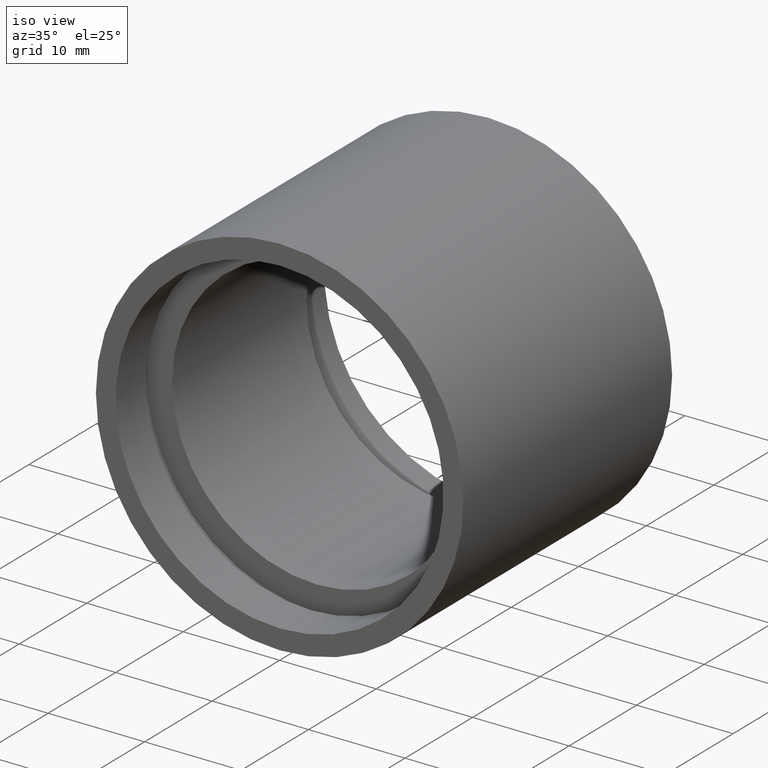
[diagram: clean part render]
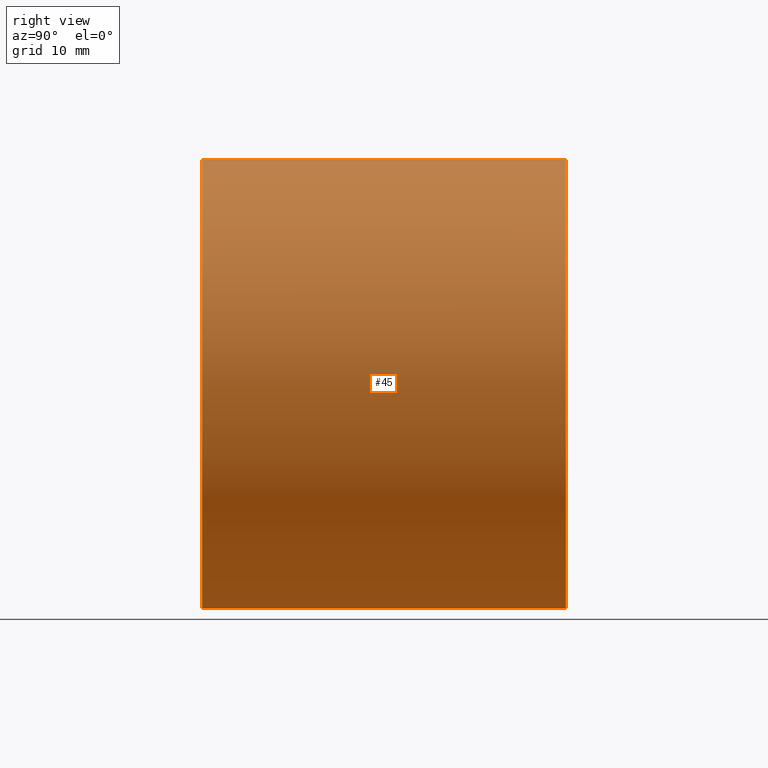
[diagram: tour spotlight — one face highlighted and labeled with its STEP entity id]
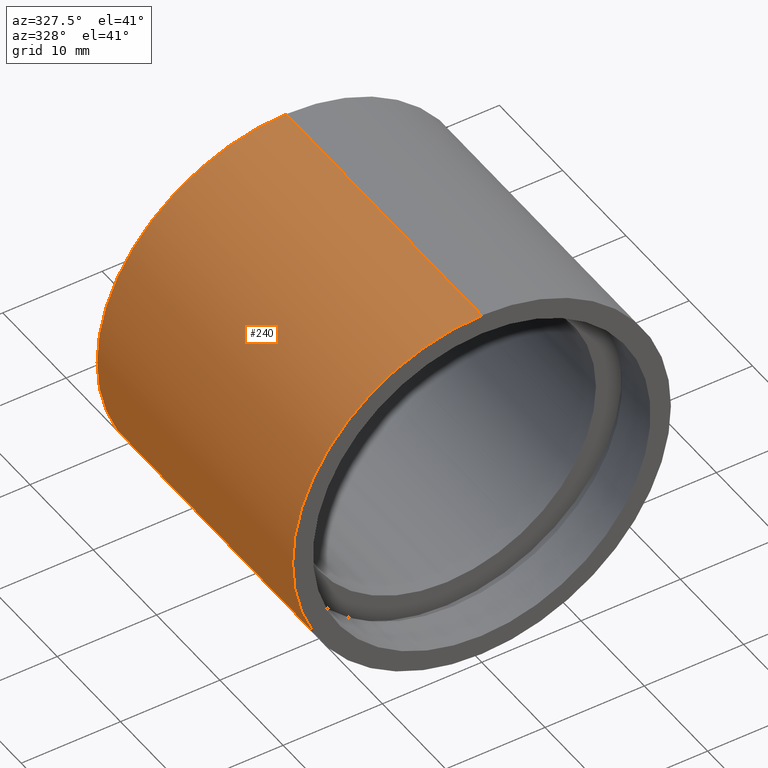
[diagram: tour spotlight — one face highlighted and labeled with its STEP entity id]
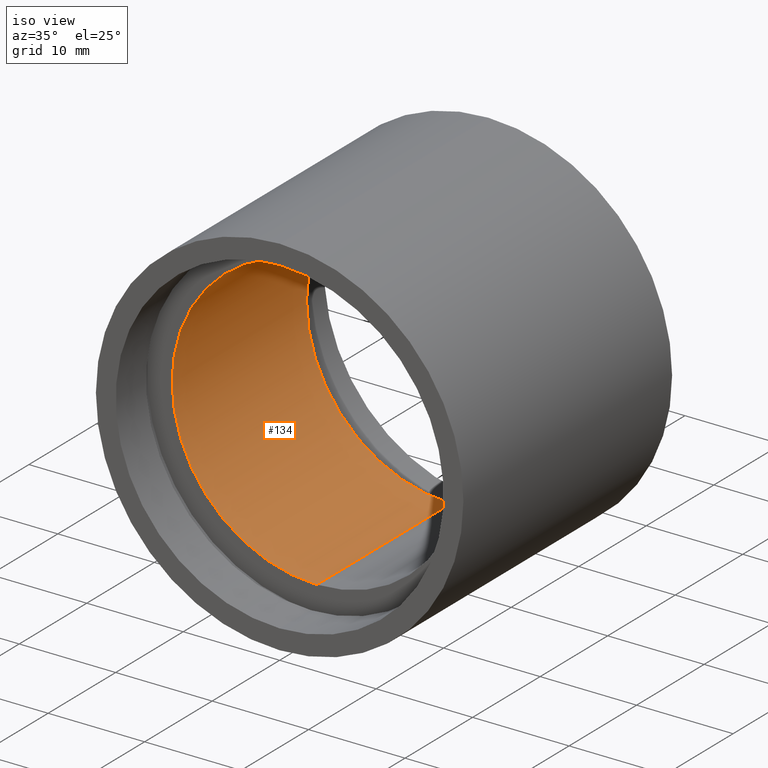
[diagram: tour spotlight — one face highlighted and labeled with its STEP entity id]
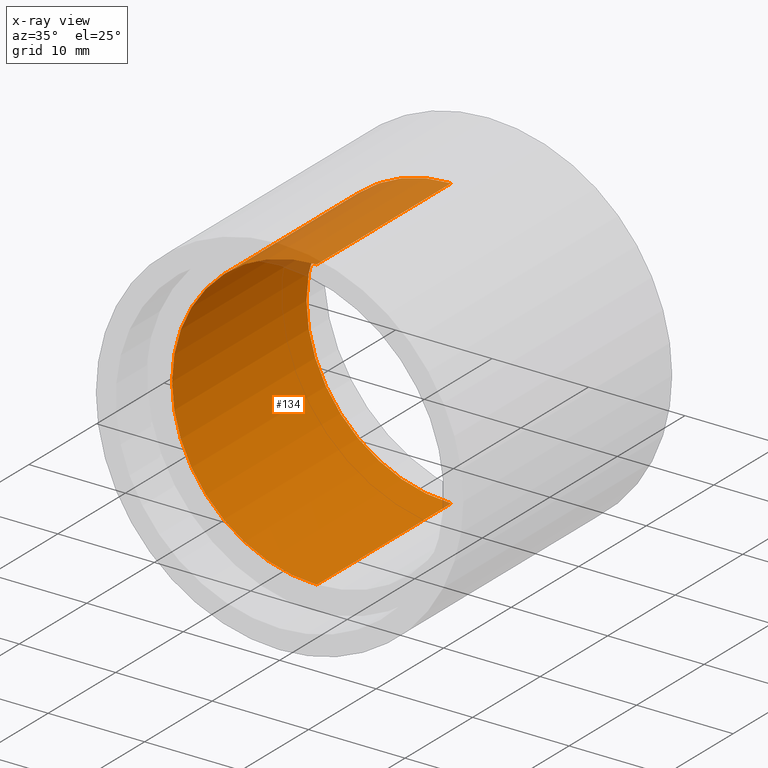
[diagram: x-ray of the same camera — body ghosted, this tour face saturated]
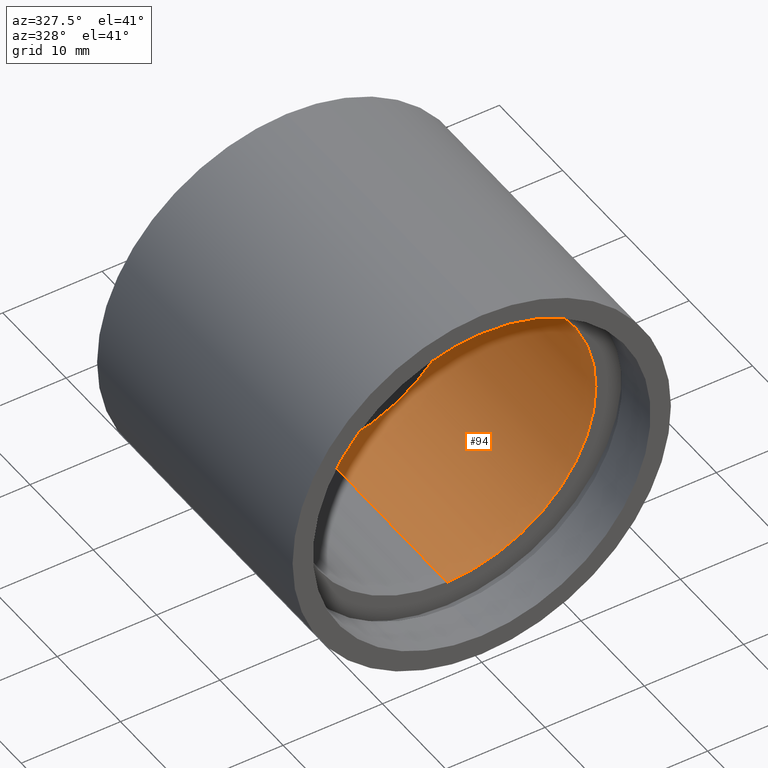
[diagram: tour spotlight — one face highlighted and labeled with its STEP entity id]
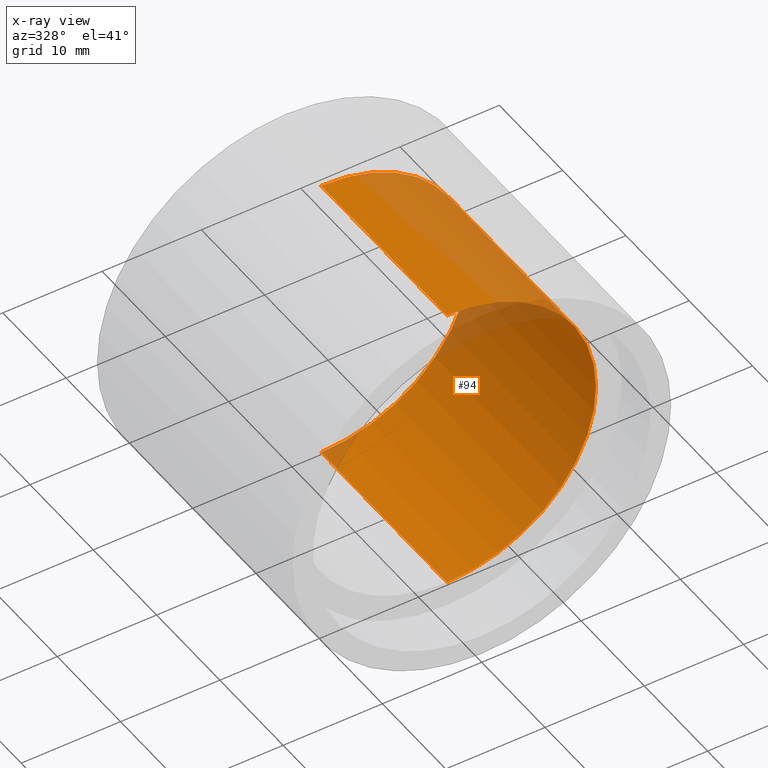
[diagram: x-ray of the same camera — body ghosted, this tour face saturated]
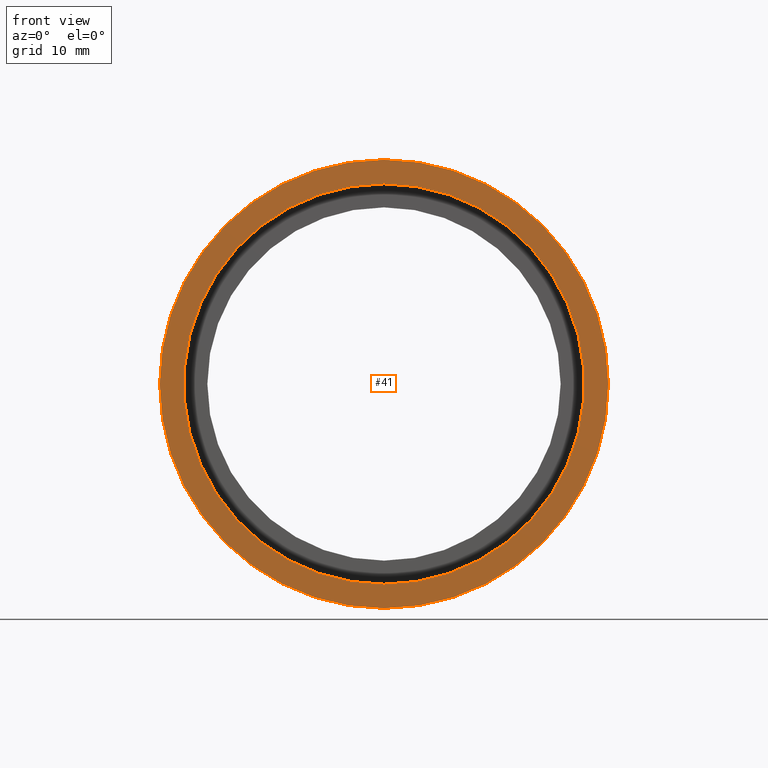
[diagram: tour spotlight — one face highlighted and labeled with its STEP entity id]
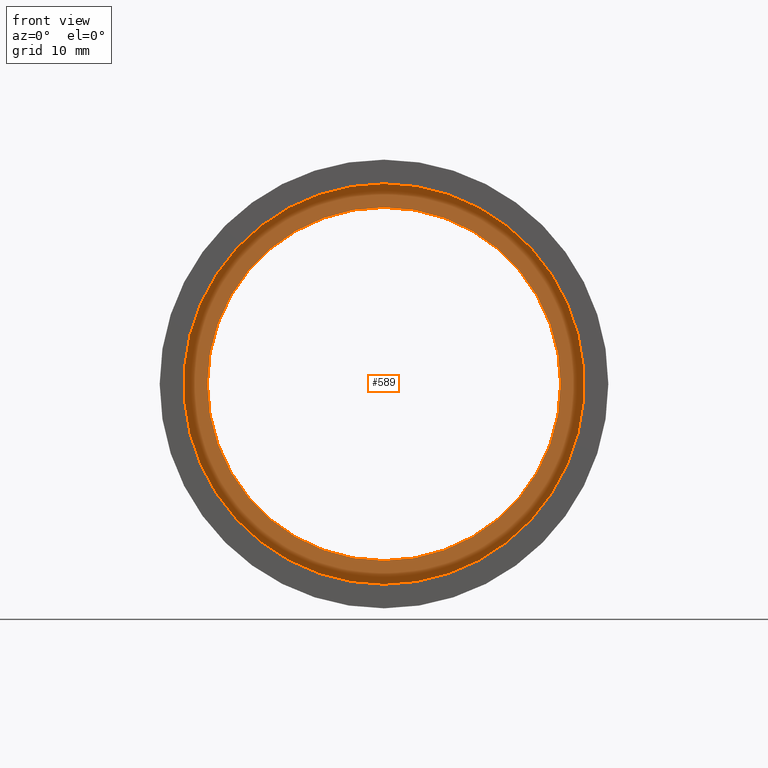
[diagram: tour spotlight — one face highlighted and labeled with its STEP entity id]
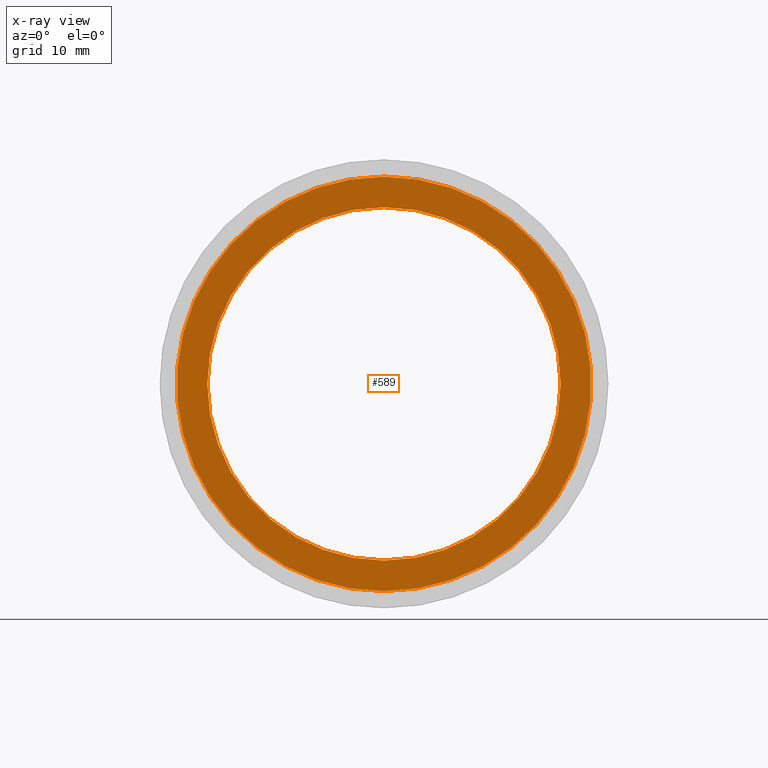
[diagram: x-ray of the same camera — body ghosted, this tour face saturated]
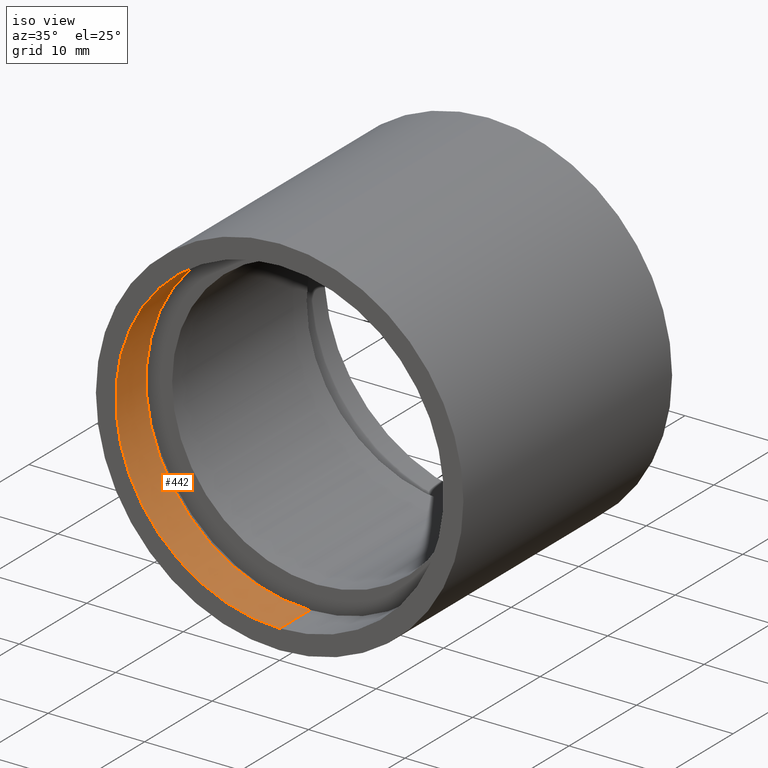
[diagram: tour spotlight — one face highlighted and labeled with its STEP entity id]
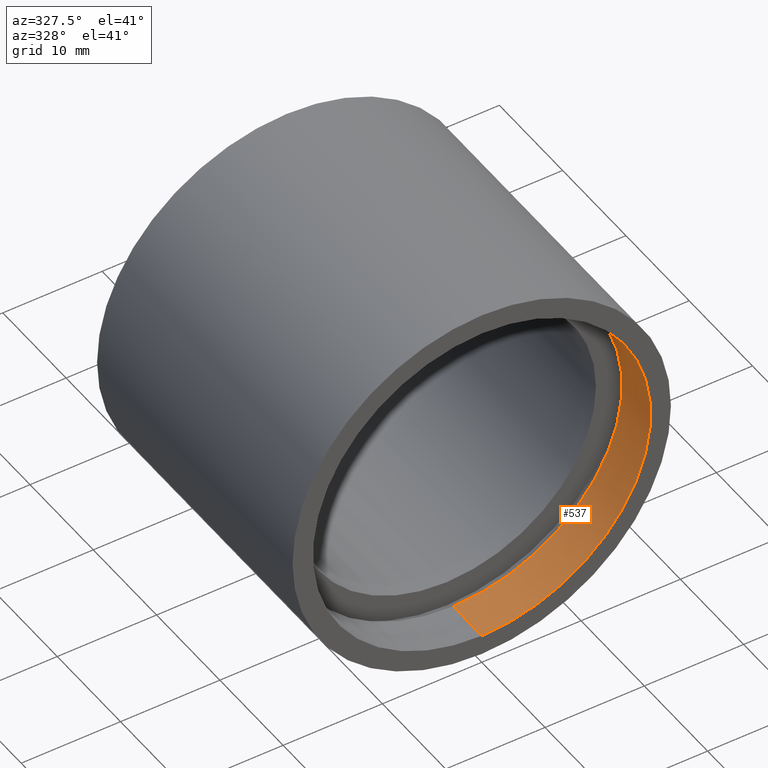
[diagram: tour spotlight — one face highlighted and labeled with its STEP entity id]
A machine part: a face-by-face anatomy tour. The part has 18 B-rep faces; the first image is the clean iso view, then the 8 largest visible faces are spotlighted one at a time (largest first), each with its STEP entity span.

Face 1 — right view, entity #45. In plain terms, the highlighted cylindrical surface (partial cylindrical patch) has radius 19.05 mm, axis along (-0, 1, -0).
Definition (entity closure, byte-faithful):
#8 = VERTEX_POINT ( 'NONE', #590 ) ;
#10 = ORIENTED_EDGE ( 'NONE', *, *, #419, .T. ) ;
#45 = ADVANCED_FACE ( 'NONE', ( #454 ), #397, .T. ) ;
#61 = AXIS2_PLACEMENT_3D ( 'NONE', #409, #410, #415 ) ;
#65 = DIRECTION ( 'NONE',  ( -0.0000000000000000000, 1.000000000000000000, -0.0000000000000000000 ) ) ;
#83 = VERTEX_POINT ( 'NONE', #147 ) ;
#105 = CARTESIAN_POINT ( 'NONE',  ( 0.0000000000000000000, 161.3761669434274500, 19.05000000000002200 ) ) ;
#110 = DIRECTION ( 'NONE',  ( 0.0000000000000000000, 0.0000000000000000000, 1.000000000000000000 ) ) ;
#124 = CARTESIAN_POINT ( 'NONE',  ( 2.332952152375710400E-015, 161.3761669434274500, -19.05000000000002200 ) ) ;
#142 = EDGE_CURVE ( 'NONE', #618, #83, #572, .T. ) ;
#147 = CARTESIAN_POINT ( 'NONE',  ( 0.0000000000000000000, 30.89999999999998400, 19.05000000000002200 ) ) ;
#154 = VECTOR ( 'NONE', #320, 1000.000000000000000 ) ;
#162 = DIRECTION ( 'NONE',  ( 0.0000000000000000000, 0.0000000000000000000, 1.000000000000000000 ) ) ;
#172 = VERTEX_POINT ( 'NONE', #220 ) ;
#202 = EDGE_LOOP ( 'NONE', ( #609, #10, #391, #546 ) ) ;
#218 = CARTESIAN_POINT ( 'NONE',  ( 0.0000000000000000000, -2.775557561562891400E-014, 0.0000000000000000000 ) ) ;
#220 = CARTESIAN_POINT ( 'NONE',  ( 2.332952152375710400E-015, -2.775557561562891400E-014, -19.05000000000002200 ) ) ;
#247 = AXIS2_PLACEMENT_3D ( 'NONE', #327, #65, #110 ) ;
#257 = AXIS2_PLACEMENT_3D ( 'NONE', #218, #319, #162 ) ;
#319 = DIRECTION ( 'NONE',  ( -0.0000000000000000000, 1.000000000000000000, -0.0000000000000000000 ) ) ;
#320 = DIRECTION ( 'NONE',  ( -0.0000000000000000000, 1.000000000000000000, -0.0000000000000000000 ) ) ;
#327 = CARTESIAN_POINT ( 'NONE',  ( 0.0000000000000000000, 30.89999999999998400, 0.0000000000000000000 ) ) ;
#391 = ORIENTED_EDGE ( 'NONE', *, *, #427, .F. ) ;
#397 = CYLINDRICAL_SURFACE ( 'NONE', #61, 19.05000000000002200 ) ;
#403 = LINE ( 'NONE', #124, #498 ) ;
#409 = CARTESIAN_POINT ( 'NONE',  ( 0.0000000000000000000, 161.3761669434274500, 0.0000000000000000000 ) ) ;
#410 = DIRECTION ( 'NONE',  ( -0.0000000000000000000, 1.000000000000000000, -0.0000000000000000000 ) ) ;
#415 = DIRECTION ( 'NONE',  ( 0.0000000000000000000, 0.0000000000000000000, 1.000000000000000000 ) ) ;
#419 = EDGE_CURVE ( 'NONE', #172, #8, #403, .T. ) ;
#427 = EDGE_CURVE ( 'NONE', #83, #8, #481, .T. ) ;
#454 = FACE_OUTER_BOUND ( 'NONE', #202, .T. ) ;
#477 = EDGE_CURVE ( 'NONE', #618, #172, #592, .T. ) ;
#481 = CIRCLE ( 'NONE', #247, 19.05000000000002200 ) ;
#485 = CARTESIAN_POINT ( 'NONE',  ( 0.0000000000000000000, -2.775557561562891400E-014, 19.05000000000002200 ) ) ;
#498 = VECTOR ( 'NONE', #532, 1000.000000000000000 ) ;
#532 = DIRECTION ( 'NONE',  ( -0.0000000000000000000, 1.000000000000000000, -0.0000000000000000000 ) ) ;
#546 = ORIENTED_EDGE ( 'NONE', *, *, #142, .F. ) ;
#572 = LINE ( 'NONE', #105, #154 ) ;
#590 = CARTESIAN_POINT ( 'NONE',  ( 2.332952152375710400E-015, 30.89999999999998400, -19.05000000000002200 ) ) ;
#592 = CIRCLE ( 'NONE', #257, 19.05000000000002200 ) ;
#609 = ORIENTED_EDGE ( 'NONE', *, *, #477, .T. ) ;
#618 = VERTEX_POINT ( 'NONE', #485 ) ;

Face 2 — auxiliary view, entity #240. In plain terms, the highlighted cylindrical surface (partial cylindrical patch) has radius 19.05 mm, axis along (-0, 1, -0).
Definition (entity closure, byte-faithful):
#8 = VERTEX_POINT ( 'NONE', #590 ) ;
#20 = DIRECTION ( 'NONE',  ( -0.0000000000000000000, 1.000000000000000000, -0.0000000000000000000 ) ) ;
#83 = VERTEX_POINT ( 'NONE', #147 ) ;
#87 = DIRECTION ( 'NONE',  ( 0.0000000000000000000, 0.0000000000000000000, 1.000000000000000000 ) ) ;
#105 = CARTESIAN_POINT ( 'NONE',  ( 0.0000000000000000000, 161.3761669434274500, 19.05000000000002200 ) ) ;
#124 = CARTESIAN_POINT ( 'NONE',  ( 2.332952152375710400E-015, 161.3761669434274500, -19.05000000000002200 ) ) ;
#128 = AXIS2_PLACEMENT_3D ( 'NONE', #375, #20, #605 ) ;
#142 = EDGE_CURVE ( 'NONE', #618, #83, #572, .T. ) ;
#147 = CARTESIAN_POINT ( 'NONE',  ( 0.0000000000000000000, 30.89999999999998400, 19.05000000000002200 ) ) ;
#154 = VECTOR ( 'NONE', #320, 1000.000000000000000 ) ;
#169 = AXIS2_PLACEMENT_3D ( 'NONE', #613, #267, #280 ) ;
#172 = VERTEX_POINT ( 'NONE', #220 ) ;
#191 = CARTESIAN_POINT ( 'NONE',  ( 0.0000000000000000000, -2.775557561562891400E-014, 0.0000000000000000000 ) ) ;
#220 = CARTESIAN_POINT ( 'NONE',  ( 2.332952152375710400E-015, -2.775557561562891400E-014, -19.05000000000002200 ) ) ;
#240 = ADVANCED_FACE ( 'NONE', ( #471 ), #358, .T. ) ;
#243 = DIRECTION ( 'NONE',  ( -0.0000000000000000000, 1.000000000000000000, -0.0000000000000000000 ) ) ;
#251 = EDGE_LOOP ( 'NONE', ( #539, #292, #602, #594 ) ) ;
#267 = DIRECTION ( 'NONE',  ( -0.0000000000000000000, 1.000000000000000000, -0.0000000000000000000 ) ) ;
#280 = DIRECTION ( 'NONE',  ( 0.0000000000000000000, 0.0000000000000000000, 1.000000000000000000 ) ) ;
#292 = ORIENTED_EDGE ( 'NONE', *, *, #599, .T. ) ;
#320 = DIRECTION ( 'NONE',  ( -0.0000000000000000000, 1.000000000000000000, -0.0000000000000000000 ) ) ;
#334 = CIRCLE ( 'NONE', #128, 19.05000000000002200 ) ;
#358 = CYLINDRICAL_SURFACE ( 'NONE', #169, 19.05000000000002200 ) ;
#375 = CARTESIAN_POINT ( 'NONE',  ( 0.0000000000000000000, 30.89999999999998400, 0.0000000000000000000 ) ) ;
#403 = LINE ( 'NONE', #124, #498 ) ;
#419 = EDGE_CURVE ( 'NONE', #172, #8, #403, .T. ) ;
#431 = AXIS2_PLACEMENT_3D ( 'NONE', #191, #243, #87 ) ;
#448 = EDGE_CURVE ( 'NONE', #8, #83, #334, .T. ) ;
#471 = FACE_OUTER_BOUND ( 'NONE', #251, .T. ) ;
#485 = CARTESIAN_POINT ( 'NONE',  ( 0.0000000000000000000, -2.775557561562891400E-014, 19.05000000000002200 ) ) ;
#498 = VECTOR ( 'NONE', #532, 1000.000000000000000 ) ;
#532 = DIRECTION ( 'NONE',  ( -0.0000000000000000000, 1.000000000000000000, -0.0000000000000000000 ) ) ;
#539 = ORIENTED_EDGE ( 'NONE', *, *, #419, .F. ) ;
#572 = LINE ( 'NONE', #105, #154 ) ;
#587 = CIRCLE ( 'NONE', #431, 19.05000000000002200 ) ;
#590 = CARTESIAN_POINT ( 'NONE',  ( 2.332952152375710400E-015, 30.89999999999998400, -19.05000000000002200 ) ) ;
#594 = ORIENTED_EDGE ( 'NONE', *, *, #448, .F. ) ;
#599 = EDGE_CURVE ( 'NONE', #172, #618, #587, .T. ) ;
#602 = ORIENTED_EDGE ( 'NONE', *, *, #142, .T. ) ;
#605 = DIRECTION ( 'NONE',  ( 0.0000000000000000000, 0.0000000000000000000, 1.000000000000000000 ) ) ;
#613 = CARTESIAN_POINT ( 'NONE',  ( 0.0000000000000000000, 161.3761669434274500, 0.0000000000000000000 ) ) ;
#618 = VERTEX_POINT ( 'NONE', #485 ) ;

Face 3 — iso view, entity #134. An x-ray twin of the same camera follows (body ghosted, this face saturated) — the face is partly hidden behind the body. In plain terms, the highlighted cylindrical surface (partial cylindrical patch) has radius 15 mm, axis along (-0, 1, -0).
Definition (entity closure, byte-faithful):
#6 = CIRCLE ( 'NONE', #462, 15.00000000000001800 ) ;
#12 = CARTESIAN_POINT ( 'NONE',  ( 0.0000000000000000000, 161.3761669434274500, 0.0000000000000000000 ) ) ;
#13 = VERTEX_POINT ( 'NONE', #588 ) ;
#16 = ORIENTED_EDGE ( 'NONE', *, *, #591, .T. ) ;
#35 = CARTESIAN_POINT ( 'NONE',  ( 0.0000000000000000000, 5.499999999999976900, 15.00000000000001800 ) ) ;
#42 = LINE ( 'NONE', #199, #252 ) ;
#53 = AXIS2_PLACEMENT_3D ( 'NONE', #12, #463, #328 ) ;
#92 = EDGE_CURVE ( 'NONE', #624, #100, #42, .T. ) ;
#100 = VERTEX_POINT ( 'NONE', #466 ) ;
#103 = CARTESIAN_POINT ( 'NONE',  ( 0.0000000000000000000, 5.499999999999976900, 0.0000000000000000000 ) ) ;
#111 = EDGE_CURVE ( 'NONE', #13, #624, #140, .T. ) ;
#131 = VECTOR ( 'NONE', #286, 1000.000000000000000 ) ;
#134 = ADVANCED_FACE ( 'NONE', ( #585 ), #167, .F. ) ;
#140 = CIRCLE ( 'NONE', #455, 15.00000000000001800 ) ;
#167 = CYLINDRICAL_SURFACE ( 'NONE', #53, 15.00000000000001800 ) ;
#187 = CARTESIAN_POINT ( 'NONE',  ( 0.0000000000000000000, 25.39999999999997700, 0.0000000000000000000 ) ) ;
#188 = DIRECTION ( 'NONE',  ( -0.0000000000000000000, 1.000000000000000000, -0.0000000000000000000 ) ) ;
#199 = CARTESIAN_POINT ( 'NONE',  ( 0.0000000000000000000, 161.3761669434274500, 15.00000000000001800 ) ) ;
#201 = DIRECTION ( 'NONE',  ( 0.0000000000000000000, 0.0000000000000000000, 1.000000000000000000 ) ) ;
#205 = DIRECTION ( 'NONE',  ( -0.0000000000000000000, 1.000000000000000000, -0.0000000000000000000 ) ) ;
#227 = CARTESIAN_POINT ( 'NONE',  ( 1.836970198721032000E-015, 161.3761669434274500, -15.00000000000001800 ) ) ;
#234 = DIRECTION ( 'NONE',  ( 0.0000000000000000000, 0.0000000000000000000, 1.000000000000000000 ) ) ;
#235 = LINE ( 'NONE', #227, #131 ) ;
#252 = VECTOR ( 'NONE', #205, 1000.000000000000000 ) ;
#286 = DIRECTION ( 'NONE',  ( -0.0000000000000000000, 1.000000000000000000, -0.0000000000000000000 ) ) ;
#311 = ORIENTED_EDGE ( 'NONE', *, *, #111, .F. ) ;
#328 = DIRECTION ( 'NONE',  ( 0.0000000000000000000, 0.0000000000000000000, 1.000000000000000000 ) ) ;
#362 = ORIENTED_EDGE ( 'NONE', *, *, #604, .T. ) ;
#381 = VERTEX_POINT ( 'NONE', #528 ) ;
#455 = AXIS2_PLACEMENT_3D ( 'NONE', #103, #505, #201 ) ;
#462 = AXIS2_PLACEMENT_3D ( 'NONE', #187, #188, #234 ) ;
#463 = DIRECTION ( 'NONE',  ( -0.0000000000000000000, 1.000000000000000000, -0.0000000000000000000 ) ) ;
#466 = CARTESIAN_POINT ( 'NONE',  ( 0.0000000000000000000, 25.39999999999997700, 15.00000000000001800 ) ) ;
#479 = ORIENTED_EDGE ( 'NONE', *, *, #92, .F. ) ;
#505 = DIRECTION ( 'NONE',  ( -0.0000000000000000000, 1.000000000000000000, -0.0000000000000000000 ) ) ;
#528 = CARTESIAN_POINT ( 'NONE',  ( 1.836970198721032000E-015, 25.39999999999997700, -15.00000000000001800 ) ) ;
#531 = EDGE_LOOP ( 'NONE', ( #311, #16, #362, #479 ) ) ;
#585 = FACE_OUTER_BOUND ( 'NONE', #531, .T. ) ;
#588 = CARTESIAN_POINT ( 'NONE',  ( 1.836970198721032000E-015, 5.499999999999976900, -15.00000000000001800 ) ) ;
#591 = EDGE_CURVE ( 'NONE', #13, #381, #235, .T. ) ;
#604 = EDGE_CURVE ( 'NONE', #381, #100, #6, .T. ) ;
#624 = VERTEX_POINT ( 'NONE', #35 ) ;

Face 4 — auxiliary view, entity #94. An x-ray twin of the same camera follows (body ghosted, this face saturated) — the face is partly hidden behind the body. In plain terms, the highlighted cylindrical surface (partial cylindrical patch) has radius 15 mm, axis along (-0, 1, -0).
Definition (entity closure, byte-faithful):
#7 = AXIS2_PLACEMENT_3D ( 'NONE', #107, #63, #256 ) ;
#13 = VERTEX_POINT ( 'NONE', #588 ) ;
#21 = DIRECTION ( 'NONE',  ( 0.0000000000000000000, 0.0000000000000000000, 1.000000000000000000 ) ) ;
#23 = CARTESIAN_POINT ( 'NONE',  ( 0.0000000000000000000, 5.499999999999976900, 0.0000000000000000000 ) ) ;
#29 = EDGE_CURVE ( 'NONE', #100, #381, #222, .T. ) ;
#35 = CARTESIAN_POINT ( 'NONE',  ( 0.0000000000000000000, 5.499999999999976900, 15.00000000000001800 ) ) ;
#42 = LINE ( 'NONE', #199, #252 ) ;
#56 = DIRECTION ( 'NONE',  ( -0.0000000000000000000, 1.000000000000000000, -0.0000000000000000000 ) ) ;
#63 = DIRECTION ( 'NONE',  ( -0.0000000000000000000, 1.000000000000000000, -0.0000000000000000000 ) ) ;
#92 = EDGE_CURVE ( 'NONE', #624, #100, #42, .T. ) ;
#94 = ADVANCED_FACE ( 'NONE', ( #502 ), #460, .F. ) ;
#100 = VERTEX_POINT ( 'NONE', #466 ) ;
#107 = CARTESIAN_POINT ( 'NONE',  ( 0.0000000000000000000, 25.39999999999997700, 0.0000000000000000000 ) ) ;
#126 = ORIENTED_EDGE ( 'NONE', *, *, #92, .T. ) ;
#131 = VECTOR ( 'NONE', #286, 1000.000000000000000 ) ;
#132 = ORIENTED_EDGE ( 'NONE', *, *, #29, .T. ) ;
#133 = AXIS2_PLACEMENT_3D ( 'NONE', #306, #56, #551 ) ;
#199 = CARTESIAN_POINT ( 'NONE',  ( 0.0000000000000000000, 161.3761669434274500, 15.00000000000001800 ) ) ;
#205 = DIRECTION ( 'NONE',  ( -0.0000000000000000000, 1.000000000000000000, -0.0000000000000000000 ) ) ;
#222 = CIRCLE ( 'NONE', #7, 15.00000000000001800 ) ;
#227 = CARTESIAN_POINT ( 'NONE',  ( 1.836970198721032000E-015, 161.3761669434274500, -15.00000000000001800 ) ) ;
#235 = LINE ( 'NONE', #227, #131 ) ;
#250 = EDGE_CURVE ( 'NONE', #624, #13, #374, .T. ) ;
#252 = VECTOR ( 'NONE', #205, 1000.000000000000000 ) ;
#256 = DIRECTION ( 'NONE',  ( 0.0000000000000000000, 0.0000000000000000000, 1.000000000000000000 ) ) ;
#286 = DIRECTION ( 'NONE',  ( -0.0000000000000000000, 1.000000000000000000, -0.0000000000000000000 ) ) ;
#300 = ORIENTED_EDGE ( 'NONE', *, *, #250, .F. ) ;
#306 = CARTESIAN_POINT ( 'NONE',  ( 0.0000000000000000000, 161.3761669434274500, 0.0000000000000000000 ) ) ;
#307 = AXIS2_PLACEMENT_3D ( 'NONE', #23, #606, #21 ) ;
#374 = CIRCLE ( 'NONE', #307, 15.00000000000001800 ) ;
#381 = VERTEX_POINT ( 'NONE', #528 ) ;
#413 = ORIENTED_EDGE ( 'NONE', *, *, #591, .F. ) ;
#460 = CYLINDRICAL_SURFACE ( 'NONE', #133, 15.00000000000001800 ) ;
#466 = CARTESIAN_POINT ( 'NONE',  ( 0.0000000000000000000, 25.39999999999997700, 15.00000000000001800 ) ) ;
#502 = FACE_OUTER_BOUND ( 'NONE', #570, .T. ) ;
#528 = CARTESIAN_POINT ( 'NONE',  ( 1.836970198721032000E-015, 25.39999999999997700, -15.00000000000001800 ) ) ;
#551 = DIRECTION ( 'NONE',  ( 0.0000000000000000000, 0.0000000000000000000, 1.000000000000000000 ) ) ;
#570 = EDGE_LOOP ( 'NONE', ( #413, #300, #126, #132 ) ) ;
#588 = CARTESIAN_POINT ( 'NONE',  ( 1.836970198721032000E-015, 5.499999999999976900, -15.00000000000001800 ) ) ;
#591 = EDGE_CURVE ( 'NONE', #13, #381, #235, .T. ) ;
#606 = DIRECTION ( 'NONE',  ( -0.0000000000000000000, 1.000000000000000000, -0.0000000000000000000 ) ) ;
#624 = VERTEX_POINT ( 'NONE', #35 ) ;

Face 5 — front view, entity #41. In plain terms, the highlighted planar face has unit normal (-0, 1, 0).
Definition (entity closure, byte-faithful):
#41 = ADVANCED_FACE ( 'NONE', ( #165, #305 ), #197, .F. ) ;
#72 = ORIENTED_EDGE ( 'NONE', *, *, #477, .F. ) ;
#87 = DIRECTION ( 'NONE',  ( 0.0000000000000000000, 0.0000000000000000000, 1.000000000000000000 ) ) ;
#98 = AXIS2_PLACEMENT_3D ( 'NONE', #370, #552, #310 ) ;
#113 = DIRECTION ( 'NONE',  ( -0.0000000000000000000, 1.000000000000000000, -0.0000000000000000000 ) ) ;
#162 = DIRECTION ( 'NONE',  ( 0.0000000000000000000, 0.0000000000000000000, 1.000000000000000000 ) ) ;
#165 = FACE_OUTER_BOUND ( 'NONE', #384, .T. ) ;
#172 = VERTEX_POINT ( 'NONE', #220 ) ;
#190 = ORIENTED_EDGE ( 'NONE', *, *, #244, .T. ) ;
#191 = CARTESIAN_POINT ( 'NONE',  ( 0.0000000000000000000, -2.775557561562891400E-014, 0.0000000000000000000 ) ) ;
#197 = PLANE ( 'NONE',  #98 ) ;
#210 = CIRCLE ( 'NONE', #392, 17.00000000000002100 ) ;
#212 = CIRCLE ( 'NONE', #549, 17.00000000000002100 ) ;
#218 = CARTESIAN_POINT ( 'NONE',  ( 0.0000000000000000000, -2.775557561562891400E-014, 0.0000000000000000000 ) ) ;
#220 = CARTESIAN_POINT ( 'NONE',  ( 2.332952152375710400E-015, -2.775557561562891400E-014, -19.05000000000002200 ) ) ;
#243 = DIRECTION ( 'NONE',  ( -0.0000000000000000000, 1.000000000000000000, -0.0000000000000000000 ) ) ;
#244 = EDGE_CURVE ( 'NONE', #501, #351, #212, .T. ) ;
#257 = AXIS2_PLACEMENT_3D ( 'NONE', #218, #319, #162 ) ;
#258 = DIRECTION ( 'NONE',  ( -0.0000000000000000000, 1.000000000000000000, -0.0000000000000000000 ) ) ;
#278 = CARTESIAN_POINT ( 'NONE',  ( 0.0000000000000000000, -2.775557561562891400E-014, 0.0000000000000000000 ) ) ;
#305 = FACE_BOUND ( 'NONE', #407, .T. ) ;
#310 = DIRECTION ( 'NONE',  ( 0.0000000000000000000, 0.0000000000000000000, 1.000000000000000000 ) ) ;
#319 = DIRECTION ( 'NONE',  ( -0.0000000000000000000, 1.000000000000000000, -0.0000000000000000000 ) ) ;
#343 = CARTESIAN_POINT ( 'NONE',  ( 2.081899558550503000E-015, -2.775557561562891400E-014, -17.00000000000002100 ) ) ;
#351 = VERTEX_POINT ( 'NONE', #343 ) ;
#363 = ORIENTED_EDGE ( 'NONE', *, *, #467, .T. ) ;
#370 = CARTESIAN_POINT ( 'NONE',  ( 17.00000000000002100, -1.527582111260147300E-014, 0.0000000000000000000 ) ) ;
#384 = EDGE_LOOP ( 'NONE', ( #72, #404 ) ) ;
#392 = AXIS2_PLACEMENT_3D ( 'NONE', #425, #258, #566 ) ;
#404 = ORIENTED_EDGE ( 'NONE', *, *, #599, .F. ) ;
#407 = EDGE_LOOP ( 'NONE', ( #190, #363 ) ) ;
#414 = CARTESIAN_POINT ( 'NONE',  ( 0.0000000000000000000, -2.775557561562891400E-014, 17.00000000000002100 ) ) ;
#425 = CARTESIAN_POINT ( 'NONE',  ( 0.0000000000000000000, -2.775557561562891400E-014, 0.0000000000000000000 ) ) ;
#431 = AXIS2_PLACEMENT_3D ( 'NONE', #191, #243, #87 ) ;
#467 = EDGE_CURVE ( 'NONE', #351, #501, #210, .T. ) ;
#477 = EDGE_CURVE ( 'NONE', #618, #172, #592, .T. ) ;
#485 = CARTESIAN_POINT ( 'NONE',  ( 0.0000000000000000000, -2.775557561562891400E-014, 19.05000000000002200 ) ) ;
#501 = VERTEX_POINT ( 'NONE', #414 ) ;
#514 = DIRECTION ( 'NONE',  ( 0.0000000000000000000, 0.0000000000000000000, 1.000000000000000000 ) ) ;
#549 = AXIS2_PLACEMENT_3D ( 'NONE', #278, #113, #514 ) ;
#552 = DIRECTION ( 'NONE',  ( -0.0000000000000000000, 1.000000000000000000, 0.0000000000000000000 ) ) ;
#566 = DIRECTION ( 'NONE',  ( 0.0000000000000000000, 0.0000000000000000000, 1.000000000000000000 ) ) ;
#587 = CIRCLE ( 'NONE', #431, 19.05000000000002200 ) ;
#592 = CIRCLE ( 'NONE', #257, 19.05000000000002200 ) ;
#599 = EDGE_CURVE ( 'NONE', #172, #618, #587, .T. ) ;
#618 = VERTEX_POINT ( 'NONE', #485 ) ;

Face 6 — front view, entity #589. An x-ray twin of the same camera follows (body ghosted, this face saturated) — the face is partly hidden behind the body. In plain terms, the highlighted planar face has unit normal (-0, 1, 0).
Definition (entity closure, byte-faithful):
#13 = VERTEX_POINT ( 'NONE', #588 ) ;
#21 = DIRECTION ( 'NONE',  ( 0.0000000000000000000, 0.0000000000000000000, 1.000000000000000000 ) ) ;
#23 = CARTESIAN_POINT ( 'NONE',  ( 0.0000000000000000000, 5.499999999999976900, 0.0000000000000000000 ) ) ;
#35 = CARTESIAN_POINT ( 'NONE',  ( 0.0000000000000000000, 5.499999999999976900, 15.00000000000001800 ) ) ;
#51 = FACE_OUTER_BOUND ( 'NONE', #440, .T. ) ;
#69 = DIRECTION ( 'NONE',  ( -0.0000000000000000000, 1.000000000000000000, -0.0000000000000000000 ) ) ;
#85 = CIRCLE ( 'NONE', #349, 17.60000000000002300 ) ;
#103 = CARTESIAN_POINT ( 'NONE',  ( 0.0000000000000000000, 5.499999999999976900, 0.0000000000000000000 ) ) ;
#111 = EDGE_CURVE ( 'NONE', #13, #624, #140, .T. ) ;
#140 = CIRCLE ( 'NONE', #455, 15.00000000000001800 ) ;
#161 = FACE_BOUND ( 'NONE', #496, .T. ) ;
#176 = CIRCLE ( 'NONE', #395, 17.60000000000002300 ) ;
#193 = AXIS2_PLACEMENT_3D ( 'NONE', #224, #279, #386 ) ;
#201 = DIRECTION ( 'NONE',  ( 0.0000000000000000000, 0.0000000000000000000, 1.000000000000000000 ) ) ;
#214 = EDGE_CURVE ( 'NONE', #482, #510, #176, .T. ) ;
#216 = DIRECTION ( 'NONE',  ( -0.0000000000000000000, 1.000000000000000000, -0.0000000000000000000 ) ) ;
#224 = CARTESIAN_POINT ( 'NONE',  ( 15.00000000000001800, 5.499999999999984000, 0.0000000000000000000 ) ) ;
#250 = EDGE_CURVE ( 'NONE', #624, #13, #374, .T. ) ;
#270 = CARTESIAN_POINT ( 'NONE',  ( 0.0000000000000000000, 5.499999999999976900, 0.0000000000000000000 ) ) ;
#271 = CARTESIAN_POINT ( 'NONE',  ( 2.155378366499344400E-015, 5.499999999999976900, -17.60000000000002300 ) ) ;
#279 = DIRECTION ( 'NONE',  ( -0.0000000000000000000, 1.000000000000000000, 0.0000000000000000000 ) ) ;
#291 = EDGE_CURVE ( 'NONE', #510, #482, #85, .T. ) ;
#307 = AXIS2_PLACEMENT_3D ( 'NONE', #23, #606, #21 ) ;
#349 = AXIS2_PLACEMENT_3D ( 'NONE', #518, #216, #564 ) ;
#374 = CIRCLE ( 'NONE', #307, 15.00000000000001800 ) ;
#386 = DIRECTION ( 'NONE',  ( 0.0000000000000000000, 0.0000000000000000000, 1.000000000000000000 ) ) ;
#395 = AXIS2_PLACEMENT_3D ( 'NONE', #270, #69, #424 ) ;
#398 = ORIENTED_EDGE ( 'NONE', *, *, #214, .F. ) ;
#421 = ORIENTED_EDGE ( 'NONE', *, *, #291, .F. ) ;
#424 = DIRECTION ( 'NONE',  ( 0.0000000000000000000, 0.0000000000000000000, 1.000000000000000000 ) ) ;
#440 = EDGE_LOOP ( 'NONE', ( #398, #421 ) ) ;
#447 = ORIENTED_EDGE ( 'NONE', *, *, #250, .T. ) ;
#455 = AXIS2_PLACEMENT_3D ( 'NONE', #103, #505, #201 ) ;
#478 = PLANE ( 'NONE',  #193 ) ;
#482 = VERTEX_POINT ( 'NONE', #600 ) ;
#496 = EDGE_LOOP ( 'NONE', ( #447, #553 ) ) ;
#505 = DIRECTION ( 'NONE',  ( -0.0000000000000000000, 1.000000000000000000, -0.0000000000000000000 ) ) ;
#510 = VERTEX_POINT ( 'NONE', #271 ) ;
#518 = CARTESIAN_POINT ( 'NONE',  ( 0.0000000000000000000, 5.499999999999976900, 0.0000000000000000000 ) ) ;
#553 = ORIENTED_EDGE ( 'NONE', *, *, #111, .T. ) ;
#564 = DIRECTION ( 'NONE',  ( 0.0000000000000000000, 0.0000000000000000000, 1.000000000000000000 ) ) ;
#588 = CARTESIAN_POINT ( 'NONE',  ( 1.836970198721032000E-015, 5.499999999999976900, -15.00000000000001800 ) ) ;
#589 = ADVANCED_FACE ( 'NONE', ( #51, #161 ), #478, .F. ) ;
#600 = CARTESIAN_POINT ( 'NONE',  ( 0.0000000000000000000, 5.499999999999976900, 17.60000000000002300 ) ) ;
#606 = DIRECTION ( 'NONE',  ( -0.0000000000000000000, 1.000000000000000000, -0.0000000000000000000 ) ) ;
#624 = VERTEX_POINT ( 'NONE', #35 ) ;

Face 7 — iso view, entity #442. In plain terms, the highlighted cylindrical surface (partial cylindrical patch) has radius 17 mm, axis along (-0, 1, -0).
Definition (entity closure, byte-faithful):
#32 = ORIENTED_EDGE ( 'NONE', *, *, #467, .F. ) ;
#67 = LINE ( 'NONE', #163, #294 ) ;
#89 = ORIENTED_EDGE ( 'NONE', *, *, #329, .T. ) ;
#96 = CIRCLE ( 'NONE', #520, 17.00000000000002100 ) ;
#109 = VERTEX_POINT ( 'NONE', #512 ) ;
#163 = CARTESIAN_POINT ( 'NONE',  ( 0.0000000000000000000, 161.3761669434274500, 17.00000000000002100 ) ) ;
#164 = DIRECTION ( 'NONE',  ( -0.0000000000000000000, 1.000000000000000000, -0.0000000000000000000 ) ) ;
#192 = EDGE_CURVE ( 'NONE', #501, #242, #67, .T. ) ;
#194 = LINE ( 'NONE', #331, #248 ) ;
#210 = CIRCLE ( 'NONE', #392, 17.00000000000002100 ) ;
#228 = EDGE_CURVE ( 'NONE', #109, #242, #96, .T. ) ;
#230 = CARTESIAN_POINT ( 'NONE',  ( 0.0000000000000000000, 161.3761669434274500, 0.0000000000000000000 ) ) ;
#242 = VERTEX_POINT ( 'NONE', #610 ) ;
#248 = VECTOR ( 'NONE', #615, 1000.000000000000000 ) ;
#258 = DIRECTION ( 'NONE',  ( -0.0000000000000000000, 1.000000000000000000, -0.0000000000000000000 ) ) ;
#269 = DIRECTION ( 'NONE',  ( 0.0000000000000000000, 0.0000000000000000000, 1.000000000000000000 ) ) ;
#287 = DIRECTION ( 'NONE',  ( -0.0000000000000000000, 1.000000000000000000, -0.0000000000000000000 ) ) ;
#294 = VECTOR ( 'NONE', #164, 1000.000000000000000 ) ;
#329 = EDGE_CURVE ( 'NONE', #351, #109, #194, .T. ) ;
#331 = CARTESIAN_POINT ( 'NONE',  ( 2.081899558550503000E-015, 161.3761669434274500, -17.00000000000002100 ) ) ;
#343 = CARTESIAN_POINT ( 'NONE',  ( 2.081899558550503000E-015, -2.775557561562891400E-014, -17.00000000000002100 ) ) ;
#345 = ORIENTED_EDGE ( 'NONE', *, *, #192, .F. ) ;
#351 = VERTEX_POINT ( 'NONE', #343 ) ;
#354 = AXIS2_PLACEMENT_3D ( 'NONE', #230, #287, #474 ) ;
#365 = FACE_OUTER_BOUND ( 'NONE', #611, .T. ) ;
#392 = AXIS2_PLACEMENT_3D ( 'NONE', #425, #258, #566 ) ;
#406 = ORIENTED_EDGE ( 'NONE', *, *, #228, .T. ) ;
#414 = CARTESIAN_POINT ( 'NONE',  ( 0.0000000000000000000, -2.775557561562891400E-014, 17.00000000000002100 ) ) ;
#418 = CARTESIAN_POINT ( 'NONE',  ( 0.0000000000000000000, 4.499999999999976000, 0.0000000000000000000 ) ) ;
#425 = CARTESIAN_POINT ( 'NONE',  ( 0.0000000000000000000, -2.775557561562891400E-014, 0.0000000000000000000 ) ) ;
#442 = ADVANCED_FACE ( 'NONE', ( #365 ), #495, .F. ) ;
#467 = EDGE_CURVE ( 'NONE', #351, #501, #210, .T. ) ;
#474 = DIRECTION ( 'NONE',  ( 0.0000000000000000000, 0.0000000000000000000, 1.000000000000000000 ) ) ;
#495 = CYLINDRICAL_SURFACE ( 'NONE', #354, 17.00000000000002100 ) ;
#501 = VERTEX_POINT ( 'NONE', #414 ) ;
#512 = CARTESIAN_POINT ( 'NONE',  ( 2.081899558550503000E-015, 4.499999999999976000, -17.00000000000002100 ) ) ;
#520 = AXIS2_PLACEMENT_3D ( 'NONE', #418, #526, #269 ) ;
#526 = DIRECTION ( 'NONE',  ( -0.0000000000000000000, 1.000000000000000000, -0.0000000000000000000 ) ) ;
#566 = DIRECTION ( 'NONE',  ( 0.0000000000000000000, 0.0000000000000000000, 1.000000000000000000 ) ) ;
#610 = CARTESIAN_POINT ( 'NONE',  ( 0.0000000000000000000, 4.499999999999976000, 17.00000000000002100 ) ) ;
#611 = EDGE_LOOP ( 'NONE', ( #32, #89, #406, #345 ) ) ;
#615 = DIRECTION ( 'NONE',  ( -0.0000000000000000000, 1.000000000000000000, -0.0000000000000000000 ) ) ;

Face 8 — auxiliary view, entity #537. In plain terms, the highlighted cylindrical surface (partial cylindrical patch) has radius 17 mm, axis along (-0, 1, -0).
Definition (entity closure, byte-faithful):
#18 = DIRECTION ( 'NONE',  ( -0.0000000000000000000, 1.000000000000000000, -0.0000000000000000000 ) ) ;
#67 = LINE ( 'NONE', #163, #294 ) ;
#80 = DIRECTION ( 'NONE',  ( 0.0000000000000000000, 0.0000000000000000000, 1.000000000000000000 ) ) ;
#109 = VERTEX_POINT ( 'NONE', #512 ) ;
#113 = DIRECTION ( 'NONE',  ( -0.0000000000000000000, 1.000000000000000000, -0.0000000000000000000 ) ) ;
#121 = EDGE_CURVE ( 'NONE', #242, #109, #441, .T. ) ;
#163 = CARTESIAN_POINT ( 'NONE',  ( 0.0000000000000000000, 161.3761669434274500, 17.00000000000002100 ) ) ;
#164 = DIRECTION ( 'NONE',  ( -0.0000000000000000000, 1.000000000000000000, -0.0000000000000000000 ) ) ;
#192 = EDGE_CURVE ( 'NONE', #501, #242, #67, .T. ) ;
#194 = LINE ( 'NONE', #331, #248 ) ;
#209 = DIRECTION ( 'NONE',  ( 0.0000000000000000000, 0.0000000000000000000, 1.000000000000000000 ) ) ;
#212 = CIRCLE ( 'NONE', #549, 17.00000000000002100 ) ;
#242 = VERTEX_POINT ( 'NONE', #610 ) ;
#244 = EDGE_CURVE ( 'NONE', #501, #351, #212, .T. ) ;
#248 = VECTOR ( 'NONE', #615, 1000.000000000000000 ) ;
#275 = ORIENTED_EDGE ( 'NONE', *, *, #192, .T. ) ;
#278 = CARTESIAN_POINT ( 'NONE',  ( 0.0000000000000000000, -2.775557561562891400E-014, 0.0000000000000000000 ) ) ;
#283 = ORIENTED_EDGE ( 'NONE', *, *, #329, .F. ) ;
#294 = VECTOR ( 'NONE', #164, 1000.000000000000000 ) ;
#329 = EDGE_CURVE ( 'NONE', #351, #109, #194, .T. ) ;
#331 = CARTESIAN_POINT ( 'NONE',  ( 2.081899558550503000E-015, 161.3761669434274500, -17.00000000000002100 ) ) ;
#343 = CARTESIAN_POINT ( 'NONE',  ( 2.081899558550503000E-015, -2.775557561562891400E-014, -17.00000000000002100 ) ) ;
#351 = VERTEX_POINT ( 'NONE', #343 ) ;
#408 = CARTESIAN_POINT ( 'NONE',  ( 0.0000000000000000000, 4.499999999999976000, 0.0000000000000000000 ) ) ;
#414 = CARTESIAN_POINT ( 'NONE',  ( 0.0000000000000000000, -2.775557561562891400E-014, 17.00000000000002100 ) ) ;
#429 = CARTESIAN_POINT ( 'NONE',  ( 0.0000000000000000000, 161.3761669434274500, 0.0000000000000000000 ) ) ;
#432 = ORIENTED_EDGE ( 'NONE', *, *, #121, .T. ) ;
#437 = CYLINDRICAL_SURFACE ( 'NONE', #507, 17.00000000000002100 ) ;
#441 = CIRCLE ( 'NONE', #581, 17.00000000000002100 ) ;
#475 = FACE_OUTER_BOUND ( 'NONE', #593, .T. ) ;
#501 = VERTEX_POINT ( 'NONE', #414 ) ;
#507 = AXIS2_PLACEMENT_3D ( 'NONE', #429, #612, #80 ) ;
#512 = CARTESIAN_POINT ( 'NONE',  ( 2.081899558550503000E-015, 4.499999999999976000, -17.00000000000002100 ) ) ;
#514 = DIRECTION ( 'NONE',  ( 0.0000000000000000000, 0.0000000000000000000, 1.000000000000000000 ) ) ;
#533 = ORIENTED_EDGE ( 'NONE', *, *, #244, .F. ) ;
#537 = ADVANCED_FACE ( 'NONE', ( #475 ), #437, .F. ) ;
#549 = AXIS2_PLACEMENT_3D ( 'NONE', #278, #113, #514 ) ;
#581 = AXIS2_PLACEMENT_3D ( 'NONE', #408, #18, #209 ) ;
#593 = EDGE_LOOP ( 'NONE', ( #283, #533, #275, #432 ) ) ;
#610 = CARTESIAN_POINT ( 'NONE',  ( 0.0000000000000000000, 4.499999999999976000, 17.00000000000002100 ) ) ;
#612 = DIRECTION ( 'NONE',  ( -0.0000000000000000000, 1.000000000000000000, -0.0000000000000000000 ) ) ;
#615 = DIRECTION ( 'NONE',  ( -0.0000000000000000000, 1.000000000000000000, -0.0000000000000000000 ) ) ;